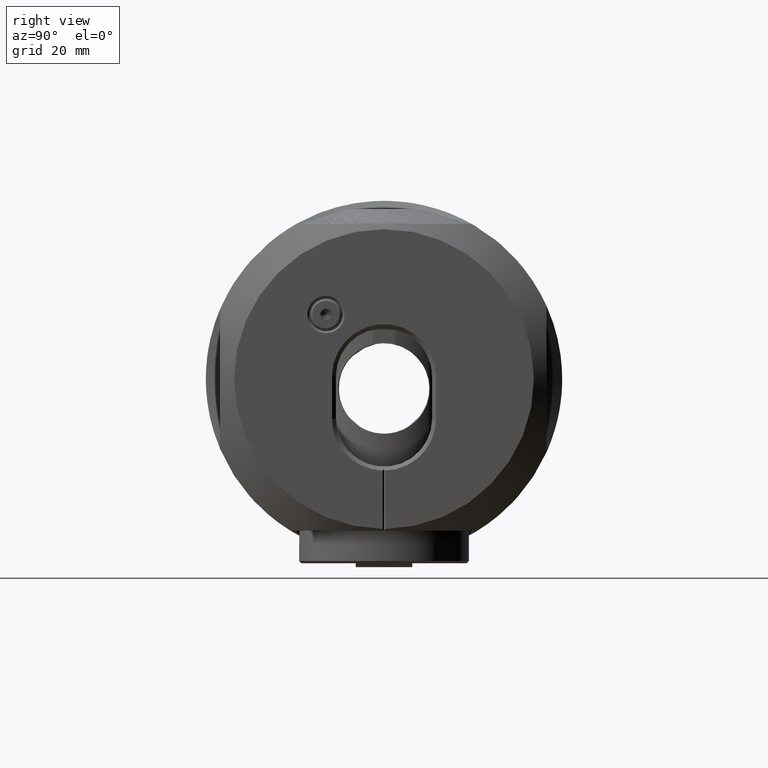
[diagram: clean part render]
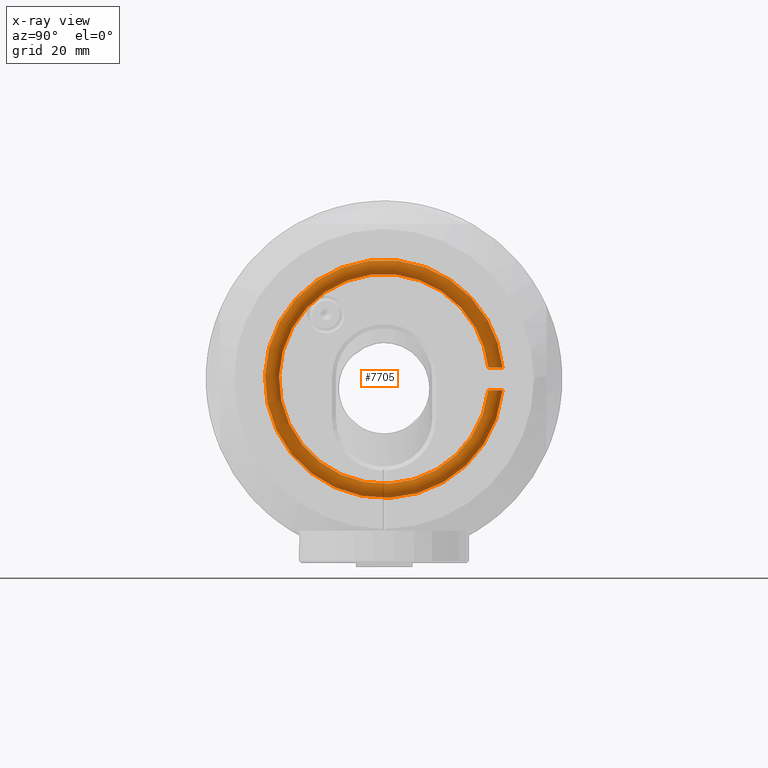
[diagram: x-ray — body ghosted, one internal face saturated and labeled with its STEP entity id]
A machine part, right view, then the same camera in x-ray: the body is ghosted and one INTERNAL B-rep face — a face not visible from any outside direction — is saturated and labeled: STEP entity #7705.
In plain terms, the highlighted toroidal blend (fillet) surface has major radius 19.8 mm and minor (blend) radius 1.25 mm.
Its self-contained STEP definition (entity closure, byte-faithful):
#98 = CARTESIAN_POINT ( 'NONE',  ( 0.2670405472459588300, 18.45983543994462700, -1.999999999999997100 ) ) ;
#110 = CARTESIAN_POINT ( 'NONE',  ( 0.06044902096179064600, 20.96397829585812600, -1.999999999999997100 ) ) ;
#450 = EDGE_CURVE ( 'NONE', #18011, #18011, #8450, .T. ) ;
#1002 = DIRECTION ( 'NONE',  ( 0.0000000000000000000, 0.0000000000000000000, 1.000000000000000000 ) ) ;
#1397 = CARTESIAN_POINT ( 'NONE',  ( -0.5402129091349978700, 18.55318812831367100, 2.000000000000002200 ) ) ;
#1502 = CARTESIAN_POINT ( 'NONE',  ( 1.060938076530470300, 19.01406051346279800, 2.000000000000002200 ) ) ;
#1600 = CARTESIAN_POINT ( 'NONE',  ( 1.240836124815823100, 19.47427925223421100, 2.000000000000002700 ) ) ;
#1696 = CARTESIAN_POINT ( 'NONE',  ( 0.4284746519788390500, 18.50664960082635700, 2.000000000000003600 ) ) ;
#1796 = CARTESIAN_POINT ( 'NONE',  ( -1.037859139941528700, 18.97948077778823300, 2.000000000000002700 ) ) ;
#1849 = EDGE_LOOP ( 'NONE', ( #23368 ) ) ;
#2319 = CARTESIAN_POINT ( 'NONE',  ( -0.05829039648024824500, 18.43254532536463900, 2.000000000000002700 ) ) ;
#2483 = CARTESIAN_POINT ( 'NONE',  ( 0.7180965786273643100, 18.65701254525805200, -1.999999999999997100 ) ) ;
#2706 = CARTESIAN_POINT ( 'NONE',  ( 0.5373746798358438600, 20.83578617612070600, -1.999999999999997800 ) ) ;
#2791 = ORIENTED_EDGE ( 'NONE', *, *, #450, .F. ) ;
#3002 = B_SPLINE_CURVE_WITH_KNOTS ( 'NONE', 3,
 ( #13360, #1397, #15947, #13544, #1796, #20345, #4164, #22900, #6237, #23002, #6132, #20639, #10773, #22615, #22703, #8489, #17892, #27255, #13154, #15545, #20243, #27358, #13257, #27547, #29693, #8595, #1600, #6342, #1502, #8691, #25192, #13455, #15846, #1696, #13859, #2319, #9016, #4674 ),
 .UNSPECIFIED., .T., .F.,
 ( 4, 2, 2, 2, 2, 2, 2, 2, 2, 2, 2, 2, 2, 2, 2, 2, 2, 2, 4 ),
 ( 0.0000000000000000000, 0.0004897165204381831800, 0.0009794330408763663500, 0.001469149561314549600, 0.001958866081752732700, 0.002448582602190916000, 0.002938299122629099300, 0.003428015643067282100, 0.003672873903286373300, 0.003917732163505464500, 0.004407448683943643500, 0.004897165204381822400, 0.005386881724820001400, 0.005876598245258179500, 0.006366314765696358400, 0.006611173025915451800, 0.006856031286134545200, 0.007345747806572731000, 0.007835464327010916900 ),
 .UNSPECIFIED. ) ;
#4164 = CARTESIAN_POINT ( 'NONE',  ( -1.232362740072013200, 19.43248860189096000, 2.000000000000002700 ) ) ;
#4275 = EDGE_LOOP ( 'NONE', ( #2791 ) ) ;
#4674 = CARTESIAN_POINT ( 'NONE',  ( -0.3826490361708857500, 18.50222735860462100, 2.000000000000002700 ) ) ;
#4743 = CARTESIAN_POINT ( 'NONE',  ( -0.7170635909852053300, 20.74061409566369800, -1.999999999999997800 ) ) ;
#4832 = CARTESIAN_POINT ( 'NONE',  ( 1.259149205724691100, 19.63703748234598100, -1.999999999999997100 ) ) ;
#5046 = CARTESIAN_POINT ( 'NONE',  ( -1.059675267897773400, 20.38507275828306600, -1.999999999999997100 ) ) ;
#6132 = CARTESIAN_POINT ( 'NONE',  ( -1.060789695783956900, 20.38329629385993200, 2.000000000000003100 ) ) ;
#6237 = CARTESIAN_POINT ( 'NONE',  ( -1.240290079263233200, 19.92493997103346000, 2.000000000000003100 ) ) ;
#6342 = CARTESIAN_POINT ( 'NONE',  ( 1.140879787871867300, 19.15931136203083400, 2.000000000000002700 ) ) ;
#6715 = CARTESIAN_POINT ( 'NONE',  ( 0.9346392849949004500, 20.54898583181471100, -1.999999999999997100 ) ) ;
#7134 = CARTESIAN_POINT ( 'NONE',  ( -0.3826490361708857500, 18.50222735860462100, -1.999999999999997300 ) ) ;
#7435 = CARTESIAN_POINT ( 'NONE',  ( -0.4266057260526408000, 20.89073002159120000, -1.999999999999997100 ) ) ;
#7705 = ADVANCED_FACE ( 'NONE', ( #12447, #17591 ), #29353, .T. ) ;
#8450 = B_SPLINE_CURVE_WITH_KNOTS ( 'NONE', 3,
 ( #14224, #9598, #26055, #98, #16608, #2483, #14328, #16720, #19051, #18953, #4832, #21317, #25030, #12833, #6715, #10857, #11641, #2706, #19168, #21227, #110, #12058, #7435, #4743, #23601, #5046, #28118, #25874, #14030, #18963, #16514, #25970, #19063, #21129, #14140, #9501, #16732, #7134 ),
 .UNSPECIFIED., .T., .F.,
 ( 4, 2, 2, 2, 2, 2, 2, 2, 2, 2, 2, 2, 2, 2, 2, 2, 2, 2, 4 ),
 ( 0.0000000000000000000, 0.0004897475350072692900, 0.0009794950700145385900, 0.001469242605021808000, 0.001958990140029077200, 0.002448737675036346600, 0.002938485210043616000, 0.003428232745050885400, 0.003673106512554516400, 0.003917980280058147400, 0.004407727815065410300, 0.004897475350072672300, 0.005387222885079934400, 0.005876970420087197300, 0.006366717955094459300, 0.006611591722598085500, 0.006856465490101710900, 0.007346213025108954700, 0.007835960560116197700 ),
 .UNSPECIFIED. ) ;
#8489 = CARTESIAN_POINT ( 'NONE',  ( -0.02147218658962201900, 20.95730319658504800, 2.000000000000003100 ) ) ;
#8595 = CARTESIAN_POINT ( 'NONE',  ( 1.259232229580309800, 19.63932921731472100, 2.000000000000003100 ) ) ;
#8691 = CARTESIAN_POINT ( 'NONE',  ( 0.9021783682813001600, 18.82497561220460400, 2.000000000000002700 ) ) ;
#9016 = CARTESIAN_POINT ( 'NONE',  ( -0.2250851632067725800, 18.45126658889557100, 2.000000000000002700 ) ) ;
#9501 = CARTESIAN_POINT ( 'NONE',  ( -0.6863907063571570400, 18.63568950742045200, -1.999999999999997300 ) ) ;
#9598 = CARTESIAN_POINT ( 'NONE',  ( -0.2250872871782613700, 18.45126727585013200, -1.999999999999997100 ) ) ;
#10154 = AXIS2_PLACEMENT_3D ( 'NONE', #12864, #15459, #1002 ) ;
#10773 = CARTESIAN_POINT ( 'NONE',  ( -0.7202668587497176300, 20.73866760138813000, 2.000000000000002200 ) ) ;
#10857 = CARTESIAN_POINT ( 'NONE',  ( 0.7471865478870800500, 20.70910337417197800, -1.999999999999997800 ) ) ;
#11339 = VERTEX_POINT ( 'NONE', #16630 ) ;
#11641 = CARTESIAN_POINT ( 'NONE',  ( 0.6802144684624501500, 20.75576500333441000, -1.999999999999997100 ) ) ;
#12058 = CARTESIAN_POINT ( 'NONE',  ( -0.2649401703327611300, 20.93715171627432900, -1.999999999999997800 ) ) ;
#12447 = FACE_OUTER_BOUND ( 'NONE', #1849, .T. ) ;
#12833 = CARTESIAN_POINT ( 'NONE',  ( 1.037328999264153500, 20.41897775788827100, -1.999999999999996700 ) ) ;
#12864 = CARTESIAN_POINT ( 'NONE',  ( 2.898972047334908300E-015, 0.0000000000000000000, 0.0000000000000000000 ) ) ;
#13154 = CARTESIAN_POINT ( 'NONE',  ( 0.3043748852034783800, 20.91974468450857600, 2.000000000000003600 ) ) ;
#13257 = CARTESIAN_POINT ( 'NONE',  ( 1.037330020570034900, 20.41849790704747400, 2.000000000000002700 ) ) ;
#13360 = CARTESIAN_POINT ( 'NONE',  ( -0.3826490361708857500, 18.50222735860462100, 2.000000000000002700 ) ) ;
#13455 = CARTESIAN_POINT ( 'NONE',  ( 0.7162607559448966900, 18.66547512120243700, 2.000000000000002700 ) ) ;
#13544 = CARTESIAN_POINT ( 'NONE',  ( -0.9344416235690520300, 18.84791511714089700, 2.000000000000002200 ) ) ;
#13859 = CARTESIAN_POINT ( 'NONE',  ( 0.2670952448159800700, 18.45997728686701900, 2.000000000000002700 ) ) ;
#14030 = CARTESIAN_POINT ( 'NONE',  ( -1.259176053047942600, 19.75998379306183100, -1.999999999999997800 ) ) ;
#14140 = CARTESIAN_POINT ( 'NONE',  ( -0.9343544713546386700, 18.84802203425571300, -1.999999999999997300 ) ) ;
#14224 = CARTESIAN_POINT ( 'NONE',  ( -0.3826490361708857500, 18.50222735860462100, -1.999999999999997300 ) ) ;
#14328 = CARTESIAN_POINT ( 'NONE',  ( 0.8492966513155938400, 18.76221662582225800, -1.999999999999997300 ) ) ;
#15459 = DIRECTION ( 'NONE',  ( -1.000000000000000000, -0.0000000000000000000, -0.0000000000000000000 ) ) ;
#15545 = CARTESIAN_POINT ( 'NONE',  ( 0.5379346294909792500, 20.84439041320129200, 2.000000000000003100 ) ) ;
#15846 = CARTESIAN_POINT ( 'NONE',  ( 0.6463558432760411200, 18.61986013393267600, 2.000000000000003100 ) ) ;
#15947 = CARTESIAN_POINT ( 'NONE',  ( -0.6847010768782778600, 18.63442538486130200, 2.000000000000002200 ) ) ;
#16514 = CARTESIAN_POINT ( 'NONE',  ( -1.224638616961283700, 19.43393051661666200, -1.999999999999997300 ) ) ;
#16608 = CARTESIAN_POINT ( 'NONE',  ( 0.4278678570526511200, 18.50645884981173200, -1.999999999999997300 ) ) ;
#16630 = CARTESIAN_POINT ( 'NONE',  ( -0.3826490361708856900, 18.50222735860462100, 2.000000000000002700 ) ) ;
#16720 = CARTESIAN_POINT ( 'NONE',  ( 1.059480381452710500, 19.01210205257520200, -1.999999999999997100 ) ) ;
#16732 = CARTESIAN_POINT ( 'NONE',  ( -0.5402107851635017400, 18.55318744135911400, -1.999999999999998200 ) ) ;
#16835 = EDGE_CURVE ( 'NONE', #11339, #11339, #3002, .T. ) ;
#17591 = FACE_OUTER_BOUND ( 'NONE', #4275, .T. ) ;
#17892 = CARTESIAN_POINT ( 'NONE',  ( 0.06016483260647809800, 20.95600877073900000, 2.000000000000002700 ) ) ;
#17967 = CARTESIAN_POINT ( 'NONE',  ( -0.3826490361708857500, 18.50222735860462100, -1.999999999999997300 ) ) ;
#18011 = VERTEX_POINT ( 'NONE', #17967 ) ;
#18953 = CARTESIAN_POINT ( 'NONE',  ( 1.240010693897214400, 19.47092021412571600, -1.999999999999997300 ) ) ;
#18963 = CARTESIAN_POINT ( 'NONE',  ( -1.239154728580673400, 19.51425958535243100, -1.999999999999997100 ) ) ;
#19051 = CARTESIAN_POINT ( 'NONE',  ( 1.140626752562732900, 19.15928038339713200, -1.999999999999997100 ) ) ;
#19063 = CARTESIAN_POINT ( 'NONE',  ( -1.149655885269268900, 19.19869329334627700, -1.999999999999997300 ) ) ;
#19168 = CARTESIAN_POINT ( 'NONE',  ( 0.4608840355701598300, 20.86918755083420200, -1.999999999999996700 ) ) ;
#20243 = CARTESIAN_POINT ( 'NONE',  ( 0.6846349043884543100, 20.76235151782551800, 2.000000000000002700 ) ) ;
#20345 = CARTESIAN_POINT ( 'NONE',  ( -1.186488422657990100, 19.27076501594273600, 2.000000000000002200 ) ) ;
#20639 = CARTESIAN_POINT ( 'NONE',  ( -0.8497033495047818800, 20.63458492827377800, 2.000000000000002200 ) ) ;
#21129 = CARTESIAN_POINT ( 'NONE',  ( -1.038280793656347000, 18.98008310452592100, -1.999999999999997300 ) ) ;
#21227 = CARTESIAN_POINT ( 'NONE',  ( 0.2274682713695479500, 20.94468032661362500, -1.999999999999997800 ) ) ;
#21317 = CARTESIAN_POINT ( 'NONE',  ( 1.232586773142874800, 19.96456855923301500, -1.999999999999997100 ) ) ;
#22615 = CARTESIAN_POINT ( 'NONE',  ( -0.4268479997406136000, 20.89089237800008500, 2.000000000000002200 ) ) ;
#22703 = CARTESIAN_POINT ( 'NONE',  ( -0.2673735923244262600, 20.93679163569205700, 2.000000000000004000 ) ) ;
#22900 = CARTESIAN_POINT ( 'NONE',  ( -1.259131928274768400, 19.75786395393858900, 2.000000000000002200 ) ) ;
#23002 = CARTESIAN_POINT ( 'NONE',  ( -1.141354229744139700, 20.23646747075611800, 2.000000000000002200 ) ) ;
#23368 = ORIENTED_EDGE ( 'NONE', *, *, #16835, .F. ) ;
#23601 = CARTESIAN_POINT ( 'NONE',  ( -0.8479534246996536200, 20.63621221159204600, -1.999999999999997100 ) ) ;
#25030 = CARTESIAN_POINT ( 'NONE',  ( 1.187697013327136700, 20.12402930443169800, -1.999999999999997100 ) ) ;
#25192 = CARTESIAN_POINT ( 'NONE',  ( 0.8437933039092915300, 18.76790077502116500, 2.000000000000003100 ) ) ;
#25874 = CARTESIAN_POINT ( 'NONE',  ( -1.240614767832652200, 19.92465070568245600, -1.999999999999997100 ) ) ;
#25970 = CARTESIAN_POINT ( 'NONE',  ( -1.180095514307385900, 19.27639538788554000, -1.999999999999997100 ) ) ;
#26055 = CARTESIAN_POINT ( 'NONE',  ( -0.06030467211664575900, 18.43251361560670500, -1.999999999999997300 ) ) ;
#27255 = CARTESIAN_POINT ( 'NONE',  ( 0.2227884969447845900, 20.93739952256256500, 2.000000000000003600 ) ) ;
#27358 = CARTESIAN_POINT ( 'NONE',  ( 0.9330989021360977000, 20.55048235524979100, 2.000000000000003100 ) ) ;
#27547 = CARTESIAN_POINT ( 'NONE',  ( 1.186184156118310600, 20.12746980248629200, 2.000000000000003100 ) ) ;
#28118 = CARTESIAN_POINT ( 'NONE',  ( -1.139999015525582600, 20.23999407420206600, -1.999999999999996700 ) ) ;
#29353 = TOROIDAL_SURFACE ( 'NONE', #10154, 19.80000000000000100, 1.250000000000001100 ) ;
#29693 = CARTESIAN_POINT ( 'NONE',  ( 1.232164880494791100, 19.96641309323504700, 2.000000000000002700 ) ) ;